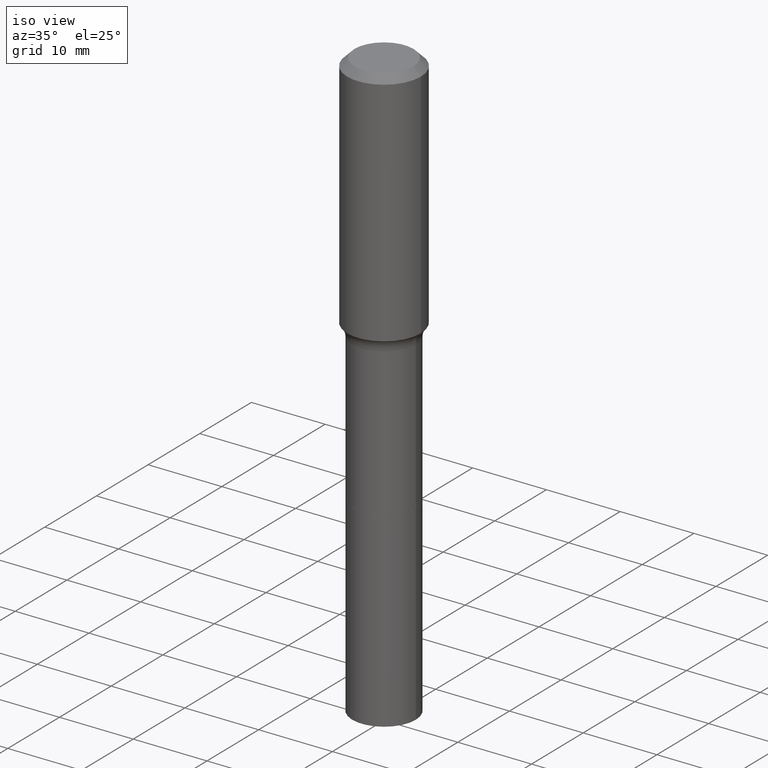
[diagram: clean part render]
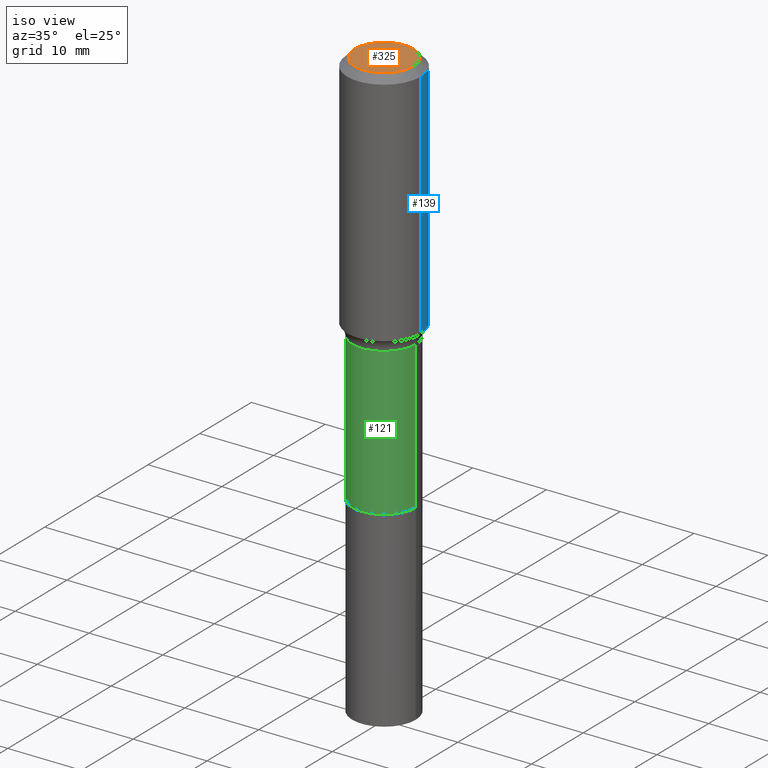
[diagram: same view with three faces highlighted in distinct colors, each labeled with its STEP entity id]
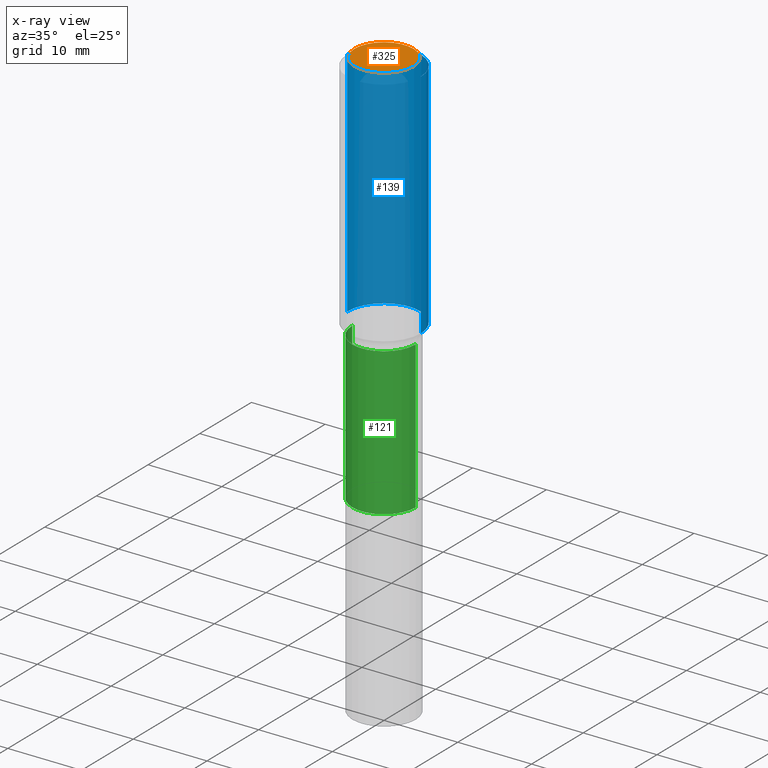
[diagram: x-ray of the same camera — body ghosted, the three highlighted faces saturated]
A machine part, iso view with three faces highlighted in distinct colors.
The next image is the same camera in x-ray (body ghosted, the three faces saturated) — at least one of them is partly hidden behind the body in this view.
Their STEP definitions:

[orange] entity #325 — the highlighted planar face has unit normal (0, -0, -1).
#3 = DIRECTION ( 'NONE',  ( -2.445468806185136597E-29, 3.491481338843145583E-15, 1.000000000000000000 ) ) ;
#20 = VERTEX_POINT ( 'NONE', #117 ) ;
#36 = AXIS2_PLACEMENT_3D ( 'NONE', #410, #99, #93 ) ;
#56 = EDGE_CURVE ( 'NONE', #171, #20, #160, .T. ) ;
#93 = DIRECTION ( 'NONE',  ( 1.000000000000000000, -6.982962677686265922E-15, 4.876223630392693006E-29 ) ) ;
#94 = EDGE_LOOP ( 'NONE', ( #415, #189 ) ) ;
#99 = DIRECTION ( 'NONE',  ( -2.445468806185136597E-29, 3.491481338843145583E-15, 1.000000000000000000 ) ) ;
#117 = CARTESIAN_POINT ( 'NONE',  ( -0.1574800000000000089, 1.168406772637159815E-15, 3.855188123707939751E-18 ) ) ;
#160 = CIRCLE ( 'NONE', #233, 0.1574800000000000089 ) ;
#159 = DIRECTION ( 'NONE',  ( 1.000000000000000000, -6.982962677686265922E-15, 4.876223630392693006E-29 ) ) ;
#161 = EDGE_CURVE ( 'NONE', #20, #171, #366, .T. ) ;
#171 = VERTEX_POINT ( 'NONE', #411 ) ;
#189 = ORIENTED_EDGE ( 'NONE', *, *, #56, .T. ) ;
#233 = AXIS2_PLACEMENT_3D ( 'NONE', #359, #3, #159 ) ;
#302 = DIRECTION ( 'NONE',  ( 2.438088387897960049E-29, -3.491481338843145188E-15, -1.000000000000000000 ) ) ;
#316 = AXIS2_PLACEMENT_3D ( 'NONE', #458, #302, #383 ) ;
#325 = ADVANCED_FACE ( 'NONE', ( #353 ), #350, .F. ) ;
#350 = PLANE ( 'NONE',  #316 ) ;
#353 = FACE_OUTER_BOUND ( 'NONE', #94, .T. ) ;
#359 = CARTESIAN_POINT ( 'NONE',  ( -9.427742298522567634E-47, 1.346031739168368355E-32, 3.855188123715870730E-18 ) ) ;
#366 = CIRCLE ( 'NONE', #36, 0.1574800000000000089 ) ;
#383 = DIRECTION ( 'NONE',  ( -1.000000000000000000, 6.982962677686265922E-15, -4.876176775795935793E-29 ) ) ;
#410 = CARTESIAN_POINT ( 'NONE',  ( -9.427742298522567634E-47, 1.346031739168368355E-32, 3.855188123715870730E-18 ) ) ;
#411 = CARTESIAN_POINT ( 'NONE',  ( 0.1574800000000000089, -1.284169937930321386E-15, 3.855188123724205385E-18 ) ) ;
#415 = ORIENTED_EDGE ( 'NONE', *, *, #161, .T. ) ;
#458 = CARTESIAN_POINT ( 'NONE',  ( -4.713871149261283817E-47, 6.730158695841841775E-33, 1.927594061857935365E-18 ) ) ;

[blue] entity #139 — the highlighted cylindrical surface (partial cylindrical patch) has radius 5 mm, axis along (-0, 0, 1).
#9 = DIRECTION ( 'NONE',  ( 1.000000000000000000, -6.982962677686266711E-15, 0.000000000000000000 ) ) ;
#14 = DIRECTION ( 'NONE',  ( -2.445468806185136597E-29, 3.491481338843145583E-15, 1.000000000000000000 ) ) ;
#15 = FACE_OUTER_BOUND ( 'NONE', #362, .T. ) ;
#17 = CIRCLE ( 'NONE', #443, 0.1968500000000001915 ) ;
#19 = DIRECTION ( 'NONE',  ( 1.000000000000000000, -6.982962677686266711E-15, 4.876176775795935793E-29 ) ) ;
#30 = VERTEX_POINT ( 'NONE', #235 ) ;
#43 = ORIENTED_EDGE ( 'NONE', *, *, #211, .T. ) ;
#58 = CARTESIAN_POINT ( 'NONE',  ( 0.1968500000000000527, -1.512055823412797583E-15, -0.03937000000000030059 ) ) ;
#69 = EDGE_CURVE ( 'NONE', #30, #403, #17, .T. ) ;
#96 = AXIS2_PLACEMENT_3D ( 'NONE', #273, #433, #428 ) ;
#97 = CARTESIAN_POINT ( 'NONE',  ( 0.000000000000000000, 0.000000000000000000, 0.000000000000000000 ) ) ;
#98 = ORIENTED_EDGE ( 'NONE', *, *, #69, .T. ) ;
#125 = ORIENTED_EDGE ( 'NONE', *, *, #178, .F. ) ;
#139 = ADVANCED_FACE ( 'NONE', ( #15 ), #369, .T. ) ;
#140 = ORIENTED_EDGE ( 'NONE', *, *, #448, .F. ) ;
#142 = VECTOR ( 'NONE', #172, 39.37007874015748143 ) ;
#172 = DIRECTION ( 'NONE',  ( -2.445468806185136877E-29, 3.491481338843145188E-15, 1.000000000000000000 ) ) ;
#178 = EDGE_CURVE ( 'NONE', #30, #219, #331, .T. ) ;
#211 = EDGE_CURVE ( 'NONE', #403, #338, #487, .T. ) ;
#214 = VECTOR ( 'NONE', #251, 39.37007874015748143 ) ;
#219 = VERTEX_POINT ( 'NONE', #58 ) ;
#235 = CARTESIAN_POINT ( 'NONE',  ( 0.1968500000000001915, -5.835115157694468144E-15, -1.277543403989624737 ) ) ;
#247 = CARTESIAN_POINT ( 'NONE',  ( -0.1968500000000001082, 1.398703375343757985E-15, -9.682923725166787881E-30 ) ) ;
#251 = DIRECTION ( 'NONE',  ( -2.445468806185136877E-29, 3.491481338843145188E-15, 1.000000000000000000 ) ) ;
#273 = CARTESIAN_POINT ( 'NONE',  ( 9.627810689950955906E-31, -1.374596203102556794E-16, -0.03937000000000030059 ) ) ;
#311 = CARTESIAN_POINT ( 'NONE',  ( -0.1968500000000000527, -9.002859121073322847E-16, -0.03937000000000030059 ) ) ;
#329 = DIRECTION ( 'NONE',  ( -2.445468806185136597E-29, 3.491481338843145583E-15, 1.000000000000000000 ) ) ;
#331 = LINE ( 'NONE', #372, #214 ) ;
#338 = VERTEX_POINT ( 'NONE', #311 ) ;
#362 = EDGE_LOOP ( 'NONE', ( #98, #43, #140, #125 ) ) ;
#369 = CYLINDRICAL_SURFACE ( 'NONE', #482, 0.1968500000000001082 ) ;
#372 = CARTESIAN_POINT ( 'NONE',  ( 0.1968500000000001082, -1.374596203102542397E-15, 9.598753983154305062E-30 ) ) ;
#391 = CIRCLE ( 'NONE', #96, 0.1968500000000000527 ) ;
#401 = CARTESIAN_POINT ( 'NONE',  ( -0.1968500000000001915, -3.061815579248166776E-15, -1.277543403989624737 ) ) ;
#403 = VERTEX_POINT ( 'NONE', #401 ) ;
#409 = CARTESIAN_POINT ( 'NONE',  ( 3.124192543004203228E-29, -4.460518954591924958E-15, -1.277543403989624737 ) ) ;
#428 = DIRECTION ( 'NONE',  ( 1.000000000000000000, -6.982962677686266711E-15, 0.000000000000000000 ) ) ;
#433 = DIRECTION ( 'NONE',  ( -2.445468806185136597E-29, 3.491481338843145583E-15, 1.000000000000000000 ) ) ;
#443 = AXIS2_PLACEMENT_3D ( 'NONE', #409, #329, #9 ) ;
#448 = EDGE_CURVE ( 'NONE', #219, #338, #391, .T. ) ;
#482 = AXIS2_PLACEMENT_3D ( 'NONE', #97, #14, #19 ) ;
#487 = LINE ( 'NONE', #247, #142 ) ;

[green] entity #121 — the highlighted cylindrical surface (partial cylindrical patch) has radius 4.3002 mm, axis along (-0, 0, 1).
#1 = CARTESIAN_POINT ( 'NONE',  ( -0.1693000000000000338, -4.843773105033651673E-15, -2.125100000000000211 ) ) ;
#8 = EDGE_CURVE ( 'NONE', #498, #374, #168, .T. ) ;
#49 = EDGE_CURVE ( 'NONE', #477, #498, #472, .T. ) ;
#61 = VECTOR ( 'NONE', #429, 39.37007874015748143 ) ;
#73 = DIRECTION ( 'NONE',  ( 1.000000000000000000, -6.982962677686268288E-15, 0.000000000000000000 ) ) ;
#85 = CARTESIAN_POINT ( 'NONE',  ( -0.1692999999999999228, -4.843773105033653251E-15, -1.338600000000000234 ) ) ;
#90 = FACE_OUTER_BOUND ( 'NONE', #137, .T. ) ;
#107 = EDGE_CURVE ( 'NONE', #423, #374, #333, .T. ) ;
#108 = ORIENTED_EDGE ( 'NONE', *, *, #49, .F. ) ;
#121 = ADVANCED_FACE ( 'NONE', ( #90 ), #255, .T. ) ;
#137 = EDGE_LOOP ( 'NONE', ( #108, #319, #447, #293 ) ) ;
#168 = CIRCLE ( 'NONE', #294, 0.1692999999999999228 ) ;
#187 = VECTOR ( 'NONE', #244, 39.37007874015748143 ) ;
#192 = DIRECTION ( 'NONE',  ( -2.445468806185136597E-29, 3.491481338843145583E-15, 1.000000000000000000 ) ) ;
#207 = AXIS2_PLACEMENT_3D ( 'NONE', #446, #287, #245 ) ;
#228 = DIRECTION ( 'NONE',  ( 1.000000000000000000, -6.982962677686269077E-15, 0.000000000000000000 ) ) ;
#244 = DIRECTION ( 'NONE',  ( -2.445468806185136877E-29, 3.491481338843145188E-15, 1.000000000000000000 ) ) ;
#245 = DIRECTION ( 'NONE',  ( 1.000000000000000000, -6.982962677686266711E-15, 4.876176775795935232E-29 ) ) ;
#255 = CYLINDRICAL_SURFACE ( 'NONE', #207, 0.1692999999999999505 ) ;
#270 = CARTESIAN_POINT ( 'NONE',  ( 0.1692999999999999228, -5.855912501507720341E-15, -1.338600000000000234 ) ) ;
#275 = CARTESIAN_POINT ( 'NONE',  ( -0.1692999999999999505, 1.202948851641849263E-15, -8.327757107801552909E-30 ) ) ;
#278 = CARTESIAN_POINT ( 'NONE',  ( 0.1693000000000000338, -8.601962574507855106E-15, -2.125100000000000211 ) ) ;
#287 = DIRECTION ( 'NONE',  ( -2.445468806185136597E-29, 3.491481338843145583E-15, 1.000000000000000000 ) ) ;
#293 = ORIENTED_EDGE ( 'NONE', *, *, #8, .F. ) ;
#294 = AXIS2_PLACEMENT_3D ( 'NONE', #481, #192, #73 ) ;
#304 = EDGE_CURVE ( 'NONE', #477, #423, #400, .T. ) ;
#319 = ORIENTED_EDGE ( 'NONE', *, *, #304, .T. ) ;
#333 = LINE ( 'NONE', #440, #187 ) ;
#374 = VERTEX_POINT ( 'NONE', #270 ) ;
#386 = CARTESIAN_POINT ( 'NONE',  ( 5.196865760024034053E-29, -7.419746993175568713E-15, -2.125100000000000211 ) ) ;
#400 = CIRCLE ( 'NONE', #462, 0.1693000000000000338 ) ;
#423 = VERTEX_POINT ( 'NONE', #278 ) ;
#429 = DIRECTION ( 'NONE',  ( -2.445468806185136877E-29, 3.491481338843145188E-15, 1.000000000000000000 ) ) ;
#440 = CARTESIAN_POINT ( 'NONE',  ( 0.1692999999999999505, -1.182215581332284618E-15, 8.255367281422515620E-30 ) ) ;
#446 = CARTESIAN_POINT ( 'NONE',  ( 0.000000000000000000, 0.000000000000000000, 0.000000000000000000 ) ) ;
#447 = ORIENTED_EDGE ( 'NONE', *, *, #107, .T. ) ;
#462 = AXIS2_PLACEMENT_3D ( 'NONE', #386, #504, #228 ) ;
#472 = LINE ( 'NONE', #275, #61 ) ;
#477 = VERTEX_POINT ( 'NONE', #1 ) ;
#481 = CARTESIAN_POINT ( 'NONE',  ( 3.273504543959424474E-29, -4.673696920175435525E-15, -1.338600000000000234 ) ) ;
#498 = VERTEX_POINT ( 'NONE', #85 ) ;
#504 = DIRECTION ( 'NONE',  ( -2.445468806185136597E-29, 3.491481338843145583E-15, 1.000000000000000000 ) ) ;